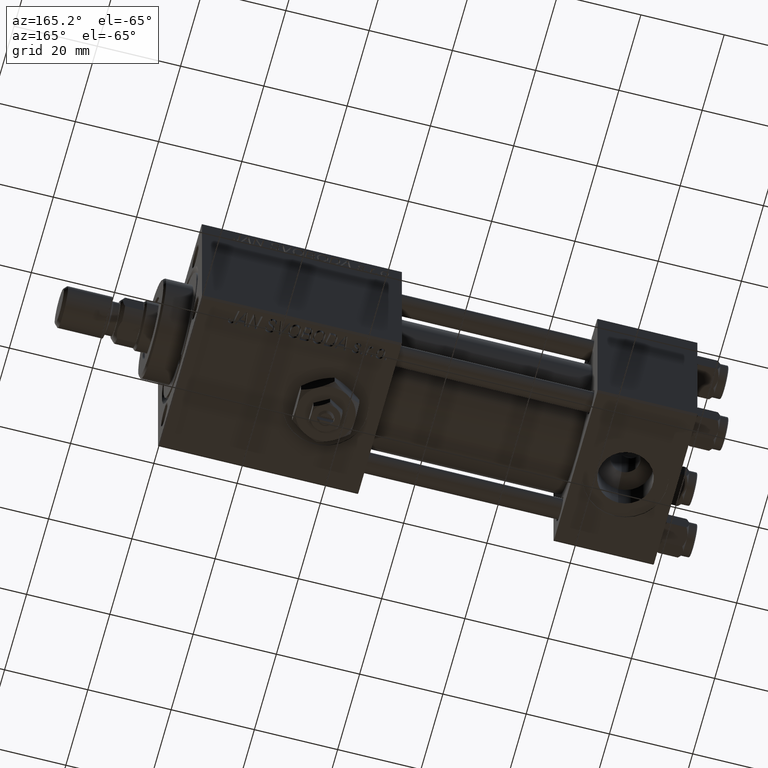
[diagram: clean part render]
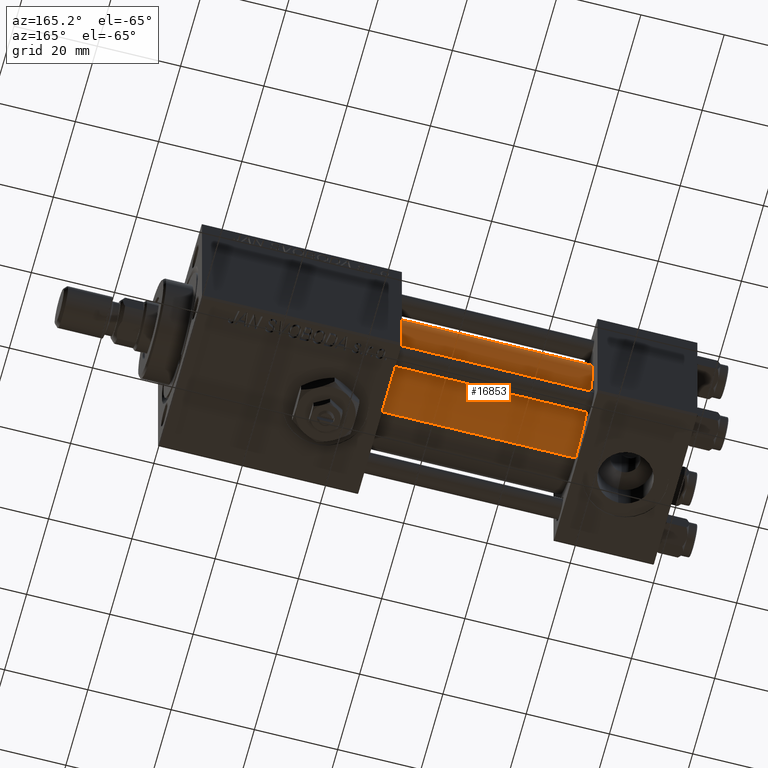
[diagram: same view with one face highlighted and labeled with its STEP entity id]
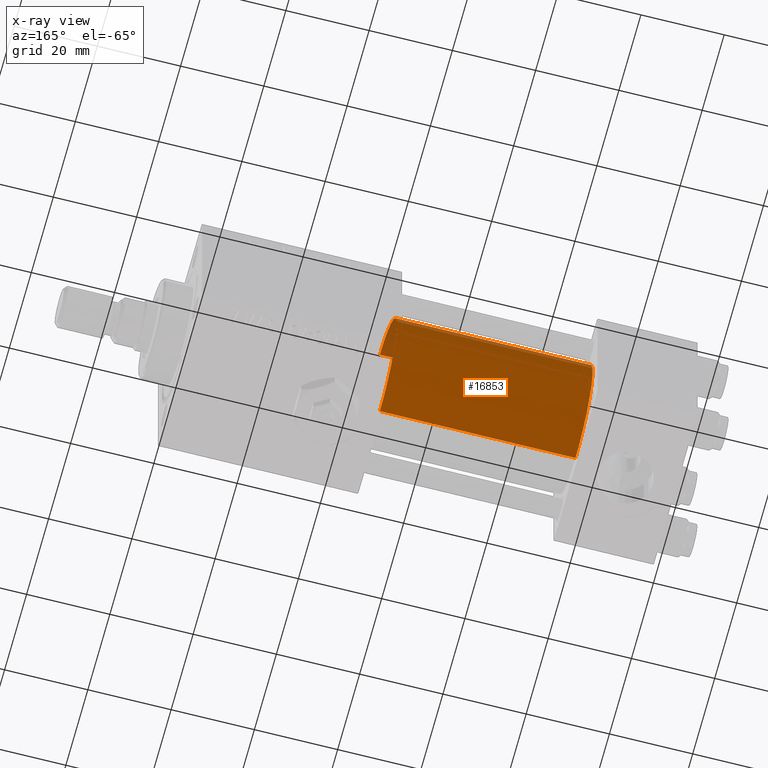
[diagram: x-ray of the same camera — body ghosted, the highlighted face saturated]
A machine part, auxiliary view. The second image highlights one B-rep face of the part: STEP entity #16853.
The next image is the same camera in x-ray: the body ghosted, the highlighted face saturated — about 2% of this face is hidden behind the body in this view.
In plain terms, the highlighted cylindrical surface (partial cylindrical patch) has radius 15.5 mm, axis along (-1, -0, -0).
Its self-contained STEP definition (entity closure, byte-faithful):
#1643 = VECTOR ( 'NONE', #42893, 1000.000000000000000 ) ;
#2020 = CARTESIAN_POINT ( 'NONE',  ( 71.00000000000001421, -2.602085213965210642E-15, 0.000000000000000000 ) ) ;
#3236 = AXIS2_PLACEMENT_3D ( 'NONE', #23618, #39889, #28172 ) ;
#6617 = CYLINDRICAL_SURFACE ( 'NONE', #11865, 15.50000000000000000 ) ;
#7421 = CARTESIAN_POINT ( 'NONE',  ( 71.00000000000001421, -2.602085213965210642E-15, 0.000000000000000000 ) ) ;
#10264 = AXIS2_PLACEMENT_3D ( 'NONE', #2020, #13784, #50572 ) ;
#11578 = VERTEX_POINT ( 'NONE', #45764 ) ;
#11865 = AXIS2_PLACEMENT_3D ( 'NONE', #7421, #23712, #22919 ) ;
#12522 = ORIENTED_EDGE ( 'NONE', *, *, #14504, .T. ) ;
#13065 = CARTESIAN_POINT ( 'NONE',  ( 24.00000000000000000, -7.038826752868131828E-16, -15.50000000000000000 ) ) ;
#13784 = DIRECTION ( 'NONE',  ( 1.000000000000000000, 0.000000000000000000, 0.000000000000000000 ) ) ;
#14504 = EDGE_CURVE ( 'NONE', #27231, #31745, #32253, .T. ) ;
#16853 = ADVANCED_FACE ( 'NONE', ( #43186 ), #6617, .T. ) ;
#16967 = ORIENTED_EDGE ( 'NONE', *, *, #24551, .T. ) ;
#17359 = ORIENTED_EDGE ( 'NONE', *, *, #37375, .F. ) ;
#17671 = EDGE_CURVE ( 'NONE', #11578, #31745, #43151, .T. ) ;
#20179 = VECTOR ( 'NONE', #50220, 1000.000000000000000 ) ;
#22919 = DIRECTION ( 'NONE',  ( 0.000000000000000000, 0.000000000000000000, 1.000000000000000000 ) ) ;
#23618 = CARTESIAN_POINT ( 'NONE',  ( 24.00000000000000000, -2.602085213965210642E-15, 0.000000000000000000 ) ) ;
#23712 = DIRECTION ( 'NONE',  ( -1.000000000000000000, -0.000000000000000000, -0.000000000000000000 ) ) ;
#24551 = EDGE_CURVE ( 'NONE', #46270, #27231, #41459, .T. ) ;
#25637 = CIRCLE ( 'NONE', #10264, 15.50000000000000000 ) ;
#25850 = CARTESIAN_POINT ( 'NONE',  ( 71.00000000000001421, -2.602085213965210642E-15, 15.50000000000000000 ) ) ;
#27231 = VERTEX_POINT ( 'NONE', #13065 ) ;
#28172 = DIRECTION ( 'NONE',  ( 0.000000000000000000, 0.000000000000000000, 1.000000000000000000 ) ) ;
#29167 = EDGE_LOOP ( 'NONE', ( #17359, #16967, #12522, #33298 ) ) ;
#31745 = VERTEX_POINT ( 'NONE', #38913 ) ;
#32253 = CIRCLE ( 'NONE', #3236, 15.50000000000000000 ) ;
#33298 = ORIENTED_EDGE ( 'NONE', *, *, #17671, .F. ) ;
#33992 = CARTESIAN_POINT ( 'NONE',  ( 71.00000000000001421, -7.038826752868131828E-16, -15.50000000000000000 ) ) ;
#35283 = CARTESIAN_POINT ( 'NONE',  ( 71.00000000000001421, -7.038826752868131828E-16, -15.50000000000000000 ) ) ;
#37375 = EDGE_CURVE ( 'NONE', #46270, #11578, #25637, .T. ) ;
#38913 = CARTESIAN_POINT ( 'NONE',  ( 24.00000000000000000, -2.602085213965210642E-15, 15.50000000000000000 ) ) ;
#39889 = DIRECTION ( 'NONE',  ( 1.000000000000000000, 0.000000000000000000, 0.000000000000000000 ) ) ;
#41459 = LINE ( 'NONE', #33992, #20179 ) ;
#42893 = DIRECTION ( 'NONE',  ( -1.000000000000000000, -0.000000000000000000, -0.000000000000000000 ) ) ;
#43151 = LINE ( 'NONE', #25850, #1643 ) ;
#43186 = FACE_OUTER_BOUND ( 'NONE', #29167, .T. ) ;
#45764 = CARTESIAN_POINT ( 'NONE',  ( 71.00000000000001421, -2.602085213965210642E-15, 15.50000000000000000 ) ) ;
#46270 = VERTEX_POINT ( 'NONE', #35283 ) ;
#50220 = DIRECTION ( 'NONE',  ( -1.000000000000000000, -0.000000000000000000, -0.000000000000000000 ) ) ;
#50572 = DIRECTION ( 'NONE',  ( 0.000000000000000000, 0.000000000000000000, -1.000000000000000000 ) ) ;